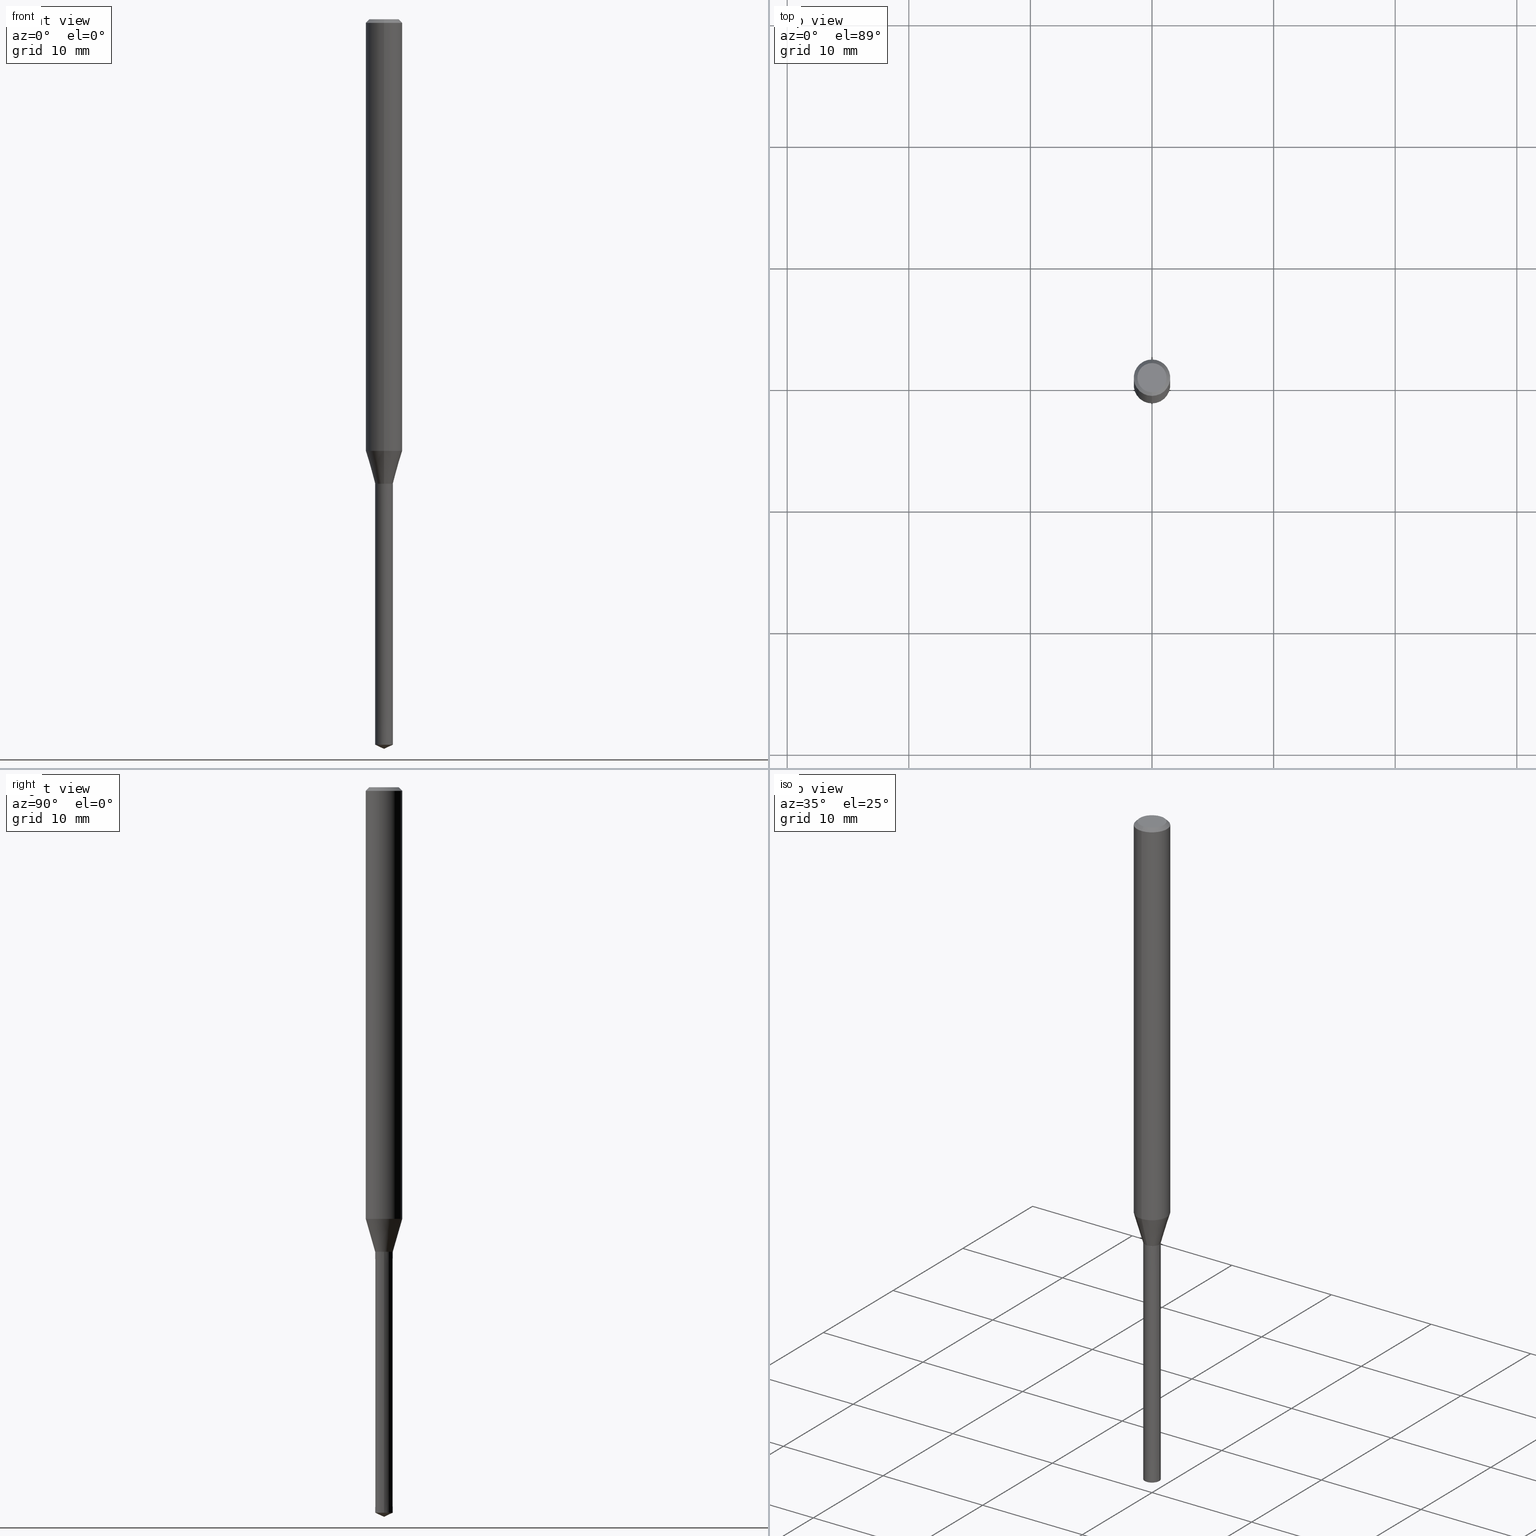
[diagram: canonical four-view strip — front | top / right | iso, engineering-drawing reading convention]
A machine part, canonical four-view strip (front | top / right | iso — engineering-drawing reading convention). The complete STEP part file that produces these views, byte-faithful:
ISO-10303-21;
HEADER;
FILE_DESCRIPTION(('no description'),'unknown implementation level');
FILE_NAME('UTDLX2145-218-Huellk.stp','  ',('CIMSOURCE GmbH'),('CADClick - KiM GmbH - www.kimweb.de'),'unknown preprocess','ACIS','unknown authorization');
FILE_SCHEMA(('automotive_design'));
ENDSEC;
DATA;
#1=MECHANICAL_DESIGN_GEOMETRIC_PRESENTATION_REPRESENTATION(' ',(#14,#15,#16,#17,#18,#19,#20,#21,#22,#23,#24,#25,#26,#27,#28,#29,#30,#31,#32,#33,#34,#35,#36,#37,#38,#39,#40,#41,#42,#43,#44,#45,#46,#47,#48,#49,#50,#51,#52,#53,#54,#55,#56,#57,#58,#59,#60,#61,#62,#63,#64,#65,#66,#67,#68,#69,#70,#71),#10);
#2=PRODUCT_DEFINITION_CONTEXT('',#72,'design');
#3=APPLICATION_PROTOCOL_DEFINITION('INTERNATIONAL STANDARD','automotive_design',1994,#72);
#4=PRODUCT_CATEGORY_RELATIONSHIP('NONE','NONE',#73,#74);
#5=SHAPE_DEFINITION_REPRESENTATION(#75,#76);
#6=PRODUCT_DEFINITION_CONTEXT('',#77,'design');
#7=APPLICATION_PROTOCOL_DEFINITION('INTERNATIONAL STANDARD','automotive_design',1994,#77);
#8=PRODUCT_CATEGORY_RELATIONSHIP('NONE','NONE',#78,#79);
#9=SHAPE_DEFINITION_REPRESENTATION(#80,#81);
#10= (GEOMETRIC_REPRESENTATION_CONTEXT(3)GLOBAL_UNCERTAINTY_ASSIGNED_CONTEXT((#84))GLOBAL_UNIT_ASSIGNED_CONTEXT((#86,#87,#88))REPRESENTATION_CONTEXT('NONE','WORKSPACE'));
#14=STYLED_ITEM('',(#90),#91);
#15=STYLED_ITEM('',(#92),#93);
#16=STYLED_ITEM('',(#94),#95);
#17=STYLED_ITEM('',(#96),#97);
#18=STYLED_ITEM('',(#98),#99);
#19=STYLED_ITEM('',(#100),#101);
#20=STYLED_ITEM('',(#102),#103);
#21=STYLED_ITEM('',(#104),#105);
#22=STYLED_ITEM('',(#106),#107);
#23=STYLED_ITEM('',(#108),#109);
#24=STYLED_ITEM('',(#110),#111);
#25=STYLED_ITEM('',(#112),#113);
#26=STYLED_ITEM('',(#114),#115);
#27=STYLED_ITEM('',(#116),#117);
#28=STYLED_ITEM('',(#118),#119);
#29=STYLED_ITEM('',(#120),#121);
#30=STYLED_ITEM('',(#122),#123);
#31=STYLED_ITEM('',(#124),#125);
#32=STYLED_ITEM('',(#126),#127);
#33=STYLED_ITEM('',(#128),#129);
#34=STYLED_ITEM('',(#130),#131);
#35=STYLED_ITEM('',(#132),#133);
#36=STYLED_ITEM('',(#134),#135);
#37=STYLED_ITEM('',(#136),#137);
#38=STYLED_ITEM('',(#138),#139);
#39=STYLED_ITEM('',(#140),#141);
#40=STYLED_ITEM('',(#142),#143);
#41=STYLED_ITEM('',(#144),#145);
#42=STYLED_ITEM('',(#146),#147);
#43=STYLED_ITEM('',(#148),#149);
#44=STYLED_ITEM('',(#150),#151);
#45=STYLED_ITEM('',(#152),#153);
#46=STYLED_ITEM('',(#154),#155);
#47=STYLED_ITEM('',(#156),#157);
#48=STYLED_ITEM('',(#158),#159);
#49=STYLED_ITEM('',(#160),#161);
#50=STYLED_ITEM('',(#162),#163);
#51=STYLED_ITEM('',(#164),#165);
#52=STYLED_ITEM('',(#166),#167);
#53=STYLED_ITEM('',(#168),#169);
#54=STYLED_ITEM('',(#170),#171);
#55=STYLED_ITEM('',(#172),#173);
#56=STYLED_ITEM('',(#174),#175);
#57=STYLED_ITEM('',(#176),#177);
#58=STYLED_ITEM('',(#178),#179);
#59=STYLED_ITEM('',(#180),#181);
#60=STYLED_ITEM('',(#182),#183);
#61=STYLED_ITEM('',(#184),#185);
#62=STYLED_ITEM('',(#186),#187);
#63=STYLED_ITEM('',(#188),#189);
#64=STYLED_ITEM('',(#190),#191);
#65=STYLED_ITEM('',(#192),#193);
#66=STYLED_ITEM('',(#194),#195);
#67=STYLED_ITEM('',(#196),#197);
#68=STYLED_ITEM('',(#198),#199);
#69=STYLED_ITEM('',(#200),#201);
#70=STYLED_ITEM('',(#202),#203);
#71=STYLED_ITEM('',(#204),#205);
#72=APPLICATION_CONTEXT(' ');
#73=PRODUCT_CATEGORY('part','NONE');
#74=PRODUCT_RELATED_PRODUCT_CATEGORY('detail',' ',(#206));
#75=PRODUCT_DEFINITION_SHAPE('NONE','NONE',#207);
#76=ADVANCED_BREP_SHAPE_REPRESENTATION('1',(#119,#208),#10);
#77=APPLICATION_CONTEXT(' ');
#78=PRODUCT_CATEGORY('part','NONE');
#79=PRODUCT_RELATED_PRODUCT_CATEGORY('detail',' ',(#209));
#80=PRODUCT_DEFINITION_SHAPE('NONE','NONE',#210);
#81=ADVANCED_BREP_SHAPE_REPRESENTATION('2',(#139,#211),#10);
#84=UNCERTAINTY_MEASURE_WITH_UNIT(LENGTH_MEASURE(1.0E-006),#86,'','');
#86= (CONVERSION_BASED_UNIT('MILLIMETRE',#214)LENGTH_UNIT()NAMED_UNIT(#217));
#87= (NAMED_UNIT(#219)PLANE_ANGLE_UNIT()SI_UNIT($,.RADIAN.));
#88= (NAMED_UNIT(#219)SOLID_ANGLE_UNIT()SI_UNIT($,.STERADIAN.));
#90=PRESENTATION_STYLE_ASSIGNMENT((#225));
#91=ADVANCED_FACE('',(#226),#227,.T.);
#92=PRESENTATION_STYLE_ASSIGNMENT((#228));
#93=ADVANCED_FACE('',(#229),#230,.T.);
#94=PRESENTATION_STYLE_ASSIGNMENT((#231));
#95=EDGE_CURVE('',#201,#125,#232,.T.);
#96=PRESENTATION_STYLE_ASSIGNMENT((#233));
#97=EDGE_CURVE('',#113,#125,#234,.T.);
#98=PRESENTATION_STYLE_ASSIGNMENT((#235));
#99=EDGE_CURVE('',#201,#159,#236,.T.);
#100=PRESENTATION_STYLE_ASSIGNMENT((#237));
#101=EDGE_CURVE('',#159,#115,#238,.T.);
#102=PRESENTATION_STYLE_ASSIGNMENT((#239));
#103=VERTEX_POINT('',#240);
#104=PRESENTATION_STYLE_ASSIGNMENT((#241));
#105=EDGE_CURVE('',#177,#117,#242,.T.);
#106=PRESENTATION_STYLE_ASSIGNMENT((#243));
#107=EDGE_CURVE('',#125,#201,#244,.T.);
#108=PRESENTATION_STYLE_ASSIGNMENT((#245));
#109=ADVANCED_FACE('',(#246),#247,.T.);
#110=PRESENTATION_STYLE_ASSIGNMENT((#248));
#111=EDGE_CURVE('',#173,#103,#249,.T.);
#112=PRESENTATION_STYLE_ASSIGNMENT((#250));
#113=VERTEX_POINT('',#251);
#114=PRESENTATION_STYLE_ASSIGNMENT((#252));
#115=VERTEX_POINT('',#253);
#116=PRESENTATION_STYLE_ASSIGNMENT((#254));
#117=VERTEX_POINT('',#255);
#118=PRESENTATION_STYLE_ASSIGNMENT((#256));
#119=MANIFOLD_SOLID_BREP('1',#257);
#120=PRESENTATION_STYLE_ASSIGNMENT((#258));
#121=EDGE_CURVE('',#103,#173,#259,.T.);
#122=PRESENTATION_STYLE_ASSIGNMENT((#260));
#123=EDGE_CURVE('',#155,#165,#261,.T.);
#124=PRESENTATION_STYLE_ASSIGNMENT((#262));
#125=VERTEX_POINT('',#263);
#126=PRESENTATION_STYLE_ASSIGNMENT((#264));
#127=EDGE_CURVE('',#165,#155,#265,.T.);
#128=PRESENTATION_STYLE_ASSIGNMENT((#266));
#129=ADVANCED_FACE('',(#267),#268,.T.);
#130=PRESENTATION_STYLE_ASSIGNMENT((#269));
#131=VERTEX_POINT('',#270);
#132=PRESENTATION_STYLE_ASSIGNMENT((#271));
#133=EDGE_CURVE('',#131,#157,#272,.T.);
#134=PRESENTATION_STYLE_ASSIGNMENT((#273));
#135=ADVANCED_FACE('',(#274),#275,.T.);
#136=PRESENTATION_STYLE_ASSIGNMENT((#276));
#137=EDGE_CURVE('',#173,#177,#277,.T.);
#138=PRESENTATION_STYLE_ASSIGNMENT((#278));
#139=MANIFOLD_SOLID_BREP('2',#279);
#140=PRESENTATION_STYLE_ASSIGNMENT((#280));
#141=EDGE_CURVE('',#113,#159,#281,.T.);
#142=PRESENTATION_STYLE_ASSIGNMENT((#282));
#143=EDGE_CURVE('',#125,#155,#283,.T.);
#144=PRESENTATION_STYLE_ASSIGNMENT((#284));
#145=EDGE_CURVE('',#147,#113,#285,.T.);
#146=PRESENTATION_STYLE_ASSIGNMENT((#286));
#147=VERTEX_POINT('',#287);
#148=PRESENTATION_STYLE_ASSIGNMENT((#288));
#149=ADVANCED_FACE('',(#289),#290,.T.);
#150=PRESENTATION_STYLE_ASSIGNMENT((#291));
#151=EDGE_CURVE('',#167,#177,#292,.T.);
#152=PRESENTATION_STYLE_ASSIGNMENT((#293));
#153=ADVANCED_FACE('',(#294),#295,.T.);
#154=PRESENTATION_STYLE_ASSIGNMENT((#296));
#155=VERTEX_POINT('',#297);
#156=PRESENTATION_STYLE_ASSIGNMENT((#298));
#157=VERTEX_POINT('',#299);
#158=PRESENTATION_STYLE_ASSIGNMENT((#300));
#159=VERTEX_POINT('',#301);
#160=PRESENTATION_STYLE_ASSIGNMENT((#302));
#161=ADVANCED_FACE('',(#303),#304,.T.);
#162=PRESENTATION_STYLE_ASSIGNMENT((#305));
#163=EDGE_CURVE('',#117,#167,#306,.T.);
#164=PRESENTATION_STYLE_ASSIGNMENT((#307));
#165=VERTEX_POINT('',#308);
#166=PRESENTATION_STYLE_ASSIGNMENT((#309));
#167=VERTEX_POINT('',#310);
#168=PRESENTATION_STYLE_ASSIGNMENT((#311));
#169=ADVANCED_FACE('',(#312),#313,.T.);
#170=PRESENTATION_STYLE_ASSIGNMENT((#314));
#171=EDGE_CURVE('',#167,#103,#315,.T.);
#172=PRESENTATION_STYLE_ASSIGNMENT((#316));
#173=VERTEX_POINT('',#317);
#174=PRESENTATION_STYLE_ASSIGNMENT((#318));
#175=EDGE_CURVE('',#131,#147,#319,.T.);
#176=PRESENTATION_STYLE_ASSIGNMENT((#320));
#177=VERTEX_POINT('',#321);
#178=PRESENTATION_STYLE_ASSIGNMENT((#322));
#179=ADVANCED_FACE('',(#323),#324,.T.);
#180=PRESENTATION_STYLE_ASSIGNMENT((#325));
#181=EDGE_CURVE('',#115,#147,#326,.T.);
#182=PRESENTATION_STYLE_ASSIGNMENT((#327));
#183=EDGE_CURVE('',#159,#113,#328,.T.);
#184=PRESENTATION_STYLE_ASSIGNMENT((#329));
#185=EDGE_CURVE('',#147,#115,#330,.T.);
#186=PRESENTATION_STYLE_ASSIGNMENT((#331));
#187=EDGE_CURVE('',#177,#167,#332,.T.);
#188=PRESENTATION_STYLE_ASSIGNMENT((#333));
#189=EDGE_CURVE('',#115,#157,#334,.T.);
#190=PRESENTATION_STYLE_ASSIGNMENT((#335));
#191=ADVANCED_FACE('',(#336),#337,.T.);
#192=PRESENTATION_STYLE_ASSIGNMENT((#338));
#193=ADVANCED_FACE('',(#339),#340,.T.);
#194=PRESENTATION_STYLE_ASSIGNMENT((#341));
#195=ADVANCED_FACE('',(#342),#343,.T.);
#196=PRESENTATION_STYLE_ASSIGNMENT((#344));
#197=EDGE_CURVE('',#165,#201,#345,.T.);
#198=PRESENTATION_STYLE_ASSIGNMENT((#346));
#199=EDGE_CURVE('',#157,#131,#347,.T.);
#200=PRESENTATION_STYLE_ASSIGNMENT((#348));
#201=VERTEX_POINT('',#349);
#202=PRESENTATION_STYLE_ASSIGNMENT((#350));
#203=ADVANCED_FACE('',(#351),#352,.T.);
#204=PRESENTATION_STYLE_ASSIGNMENT((#353));
#205=ADVANCED_FACE('',(#354),#355,.T.);
#206=PRODUCT('1','1','PART-1-DESC',(#356));
#207=PRODUCT_DEFINITION('NONE','NONE',#357,#2);
#208=AXIS2_PLACEMENT_3D('',#358,#359,#360);
#209=PRODUCT('2','2','PART-2-DESC',(#361));
#210=PRODUCT_DEFINITION('NONE','NONE',#362,#6);
#211=AXIS2_PLACEMENT_3D('',#363,#364,#365);
#214=LENGTH_MEASURE_WITH_UNIT(LENGTH_MEASURE(1.0),#366);
#217=DIMENSIONAL_EXPONENTS(1.0,0.0,0.0,0.0,0.0,0.0,0.0);
#219=DIMENSIONAL_EXPONENTS(0.0,0.0,0.0,0.0,0.0,0.0,0.0);
#225=SURFACE_STYLE_USAGE(.BOTH.,#367);
#226=FACE_OUTER_BOUND('',#368,.T.);
#227=PLANE('',#369);
#228=SURFACE_STYLE_USAGE(.BOTH.,#370);
#229=FACE_OUTER_BOUND('',#371,.T.);
#230=CONICAL_SURFACE('',#372,1.35,0.785398163397453);
#231=CURVE_STYLE('',#373,POSITIVE_LENGTH_MEASURE(1.0E-006),#374);
#232=CIRCLE('',#375,0.725);
#233=CURVE_STYLE('',#376,POSITIVE_LENGTH_MEASURE(1.0E-006),#377);
#234=LINE('',#378,#379);
#235=CURVE_STYLE('',#380,POSITIVE_LENGTH_MEASURE(1.0E-006),#381);
#236=LINE('',#382,#383);
#237=CURVE_STYLE('',#384,POSITIVE_LENGTH_MEASURE(1.0E-006),#385);
#238=LINE('',#386,#387);
#239=POINT_STYLE(' ',#388,POSITIVE_LENGTH_MEASURE(1.0E-006),#389);
#240=CARTESIAN_POINT('',(0.726,8.89064212875046E-017,-38.2));
#241=CURVE_STYLE('',#390,POSITIVE_LENGTH_MEASURE(1.0E-006),#391);
#242=LINE('',#392,#393);
#243=CURVE_STYLE('',#394,POSITIVE_LENGTH_MEASURE(1.0E-006),#395);
#244=CIRCLE('',#396,0.725);
#245=SURFACE_STYLE_USAGE(.BOTH.,#397);
#246=FACE_OUTER_BOUND('',#398,.T.);
#247=CYLINDRICAL_SURFACE('',#399,1.5);
#248=CURVE_STYLE('',#400,POSITIVE_LENGTH_MEASURE(1.0E-006),#401);
#249=CIRCLE('',#402,0.726);
#250=POINT_STYLE(' ',#403,POSITIVE_LENGTH_MEASURE(1.0E-006),#404);
#251=CARTESIAN_POINT('',(0.0,1.5,-35.497));
#252=POINT_STYLE(' ',#405,POSITIVE_LENGTH_MEASURE(1.0E-006),#406);
#253=CARTESIAN_POINT('',(1.83690953073357E-016,-1.5,-0.299999999999997));
#254=POINT_STYLE(' ',#407,POSITIVE_LENGTH_MEASURE(1.0E-006),#408);
#255=CARTESIAN_POINT('',(0.0,0.0,-60.0));
#256=SURFACE_STYLE_USAGE(.BOTH.,#409);
#257=CLOSED_SHELL('',(#203,#169,#109,#205,#179,#93,#129,#153,#191,#91));
#258=CURVE_STYLE('',#410,POSITIVE_LENGTH_MEASURE(1.0E-006),#411);
#259=CIRCLE('',#412,0.726);
#260=CURVE_STYLE('',#413,POSITIVE_LENGTH_MEASURE(1.0E-006),#414);
#261=CIRCLE('',#415,0.7255);
#262=POINT_STYLE(' ',#416,POSITIVE_LENGTH_MEASURE(1.0E-006),#417);
#263=CARTESIAN_POINT('',(0.0,0.725,-38.1991339745962));
#264=CURVE_STYLE('',#418,POSITIVE_LENGTH_MEASURE(1.0E-006),#419);
#265=CIRCLE('',#420,0.7255);
#266=SURFACE_STYLE_USAGE(.BOTH.,#421);
#267=FACE_OUTER_BOUND('',#422,.T.);
#268=CYLINDRICAL_SURFACE('',#423,1.5);
#269=POINT_STYLE(' ',#424,POSITIVE_LENGTH_MEASURE(1.0E-006),#425);
#270=CARTESIAN_POINT('',(0.0,1.2,0.0));
#271=CURVE_STYLE('',#426,POSITIVE_LENGTH_MEASURE(1.0E-006),#427);
#272=CIRCLE('',#428,1.2);
#273=SURFACE_STYLE_USAGE(.BOTH.,#429);
#274=FACE_OUTER_BOUND('',#430,.T.);
#275=CONICAL_SURFACE('',#431,0.3625,1.13446401624619);
#276=CURVE_STYLE('',#432,POSITIVE_LENGTH_MEASURE(1.0E-006),#433);
#277=LINE('',#434,#435);
#278=SURFACE_STYLE_USAGE(.BOTH.,#436);
#279=CLOSED_SHELL('',(#135,#161,#195,#149,#193));
#280=CURVE_STYLE('',#437,POSITIVE_LENGTH_MEASURE(1.0E-006),#438);
#281=CIRCLE('',#439,1.5);
#282=CURVE_STYLE('',#440,POSITIVE_LENGTH_MEASURE(1.0E-006),#441);
#283=LINE('',#442,#443);
#284=CURVE_STYLE('',#444,POSITIVE_LENGTH_MEASURE(1.0E-006),#445);
#285=LINE('',#446,#447);
#286=POINT_STYLE(' ',#448,POSITIVE_LENGTH_MEASURE(1.0E-006),#449);
#287=CARTESIAN_POINT('',(0.0,1.5,-0.299999999999997));
#288=SURFACE_STYLE_USAGE(.BOTH.,#450);
#289=FACE_OUTER_BOUND('',#451,.T.);
#290=CONICAL_SURFACE('',#452,0.7255,4.65941386160728E-005);
#291=CURVE_STYLE('',#453,POSITIVE_LENGTH_MEASURE(1.0E-006),#454);
#292=CIRCLE('',#455,0.725);
#293=SURFACE_STYLE_USAGE(.BOTH.,#456);
#294=FACE_OUTER_BOUND('',#457,.T.);
#295=CONICAL_SURFACE('',#458,1.1125,0.279312710884157);
#296=POINT_STYLE(' ',#459,POSITIVE_LENGTH_MEASURE(1.0E-006),#460);
#297=CARTESIAN_POINT('',(0.0,0.7255,-38.2));
#298=POINT_STYLE(' ',#461,POSITIVE_LENGTH_MEASURE(1.0E-006),#462);
#299=CARTESIAN_POINT('',(1.46952762458685E-016,-1.2,0.0));
#300=POINT_STYLE(' ',#463,POSITIVE_LENGTH_MEASURE(1.0E-006),#464);
#301=CARTESIAN_POINT('',(1.83690953073357E-016,-1.5,-35.497));
#302=SURFACE_STYLE_USAGE(.BOTH.,#465);
#303=FACE_OUTER_BOUND('',#466,.T.);
#304=CONICAL_SURFACE('',#467,0.7255,4.65941386160728E-005);
#305=CURVE_STYLE('',#468,POSITIVE_LENGTH_MEASURE(1.0E-006),#469);
#306=LINE('',#470,#471);
#307=POINT_STYLE(' ',#472,POSITIVE_LENGTH_MEASURE(1.0E-006),#473);
#308=CARTESIAN_POINT('',(8.88451909698135E-017,-0.7255,-38.2));
#309=POINT_STYLE(' ',#474,POSITIVE_LENGTH_MEASURE(1.0E-006),#475);
#310=CARTESIAN_POINT('',(0.725,8.87839606521223E-017,-59.66192695));
#311=SURFACE_STYLE_USAGE(.BOTH.,#476);
#312=FACE_OUTER_BOUND('',#477,.T.);
#313=CONICAL_SURFACE('',#478,1.1125,0.279312710884157);
#314=CURVE_STYLE('',#479,POSITIVE_LENGTH_MEASURE(1.0E-006),#480);
#315=LINE('',#481,#482);
#316=POINT_STYLE(' ',#483,POSITIVE_LENGTH_MEASURE(1.0E-006),#484);
#317=CARTESIAN_POINT('',(-0.726,0.0,-38.2));
#318=CURVE_STYLE('',#485,POSITIVE_LENGTH_MEASURE(1.0E-006),#486);
#319=LINE('',#487,#488);
#320=POINT_STYLE(' ',#489,POSITIVE_LENGTH_MEASURE(1.0E-006),#490);
#321=CARTESIAN_POINT('',(-0.725,0.0,-59.66192695));
#322=SURFACE_STYLE_USAGE(.BOTH.,#491);
#323=FACE_OUTER_BOUND('',#492,.T.);
#324=PLANE('',#493);
#325=CURVE_STYLE('',#494,POSITIVE_LENGTH_MEASURE(1.0E-006),#495);
#326=CIRCLE('',#496,1.5);
#327=CURVE_STYLE('',#497,POSITIVE_LENGTH_MEASURE(1.0E-006),#498);
#328=CIRCLE('',#499,1.5);
#329=CURVE_STYLE('',#500,POSITIVE_LENGTH_MEASURE(1.0E-006),#501);
#330=CIRCLE('',#502,1.5);
#331=CURVE_STYLE('',#503,POSITIVE_LENGTH_MEASURE(1.0E-006),#504);
#332=CIRCLE('',#505,0.725);
#333=CURVE_STYLE('',#506,POSITIVE_LENGTH_MEASURE(1.0E-006),#507);
#334=LINE('',#508,#509);
#335=SURFACE_STYLE_USAGE(.BOTH.,#510);
#336=FACE_OUTER_BOUND('',#511,.T.);
#337=CONICAL_SURFACE('',#512,0.72525,0.523598775598234);
#338=SURFACE_STYLE_USAGE(.BOTH.,#513);
#339=FACE_OUTER_BOUND('',#514,.T.);
#340=CONICAL_SURFACE('',#515,0.3625,1.13446401624619);
#341=SURFACE_STYLE_USAGE(.BOTH.,#516);
#342=FACE_OUTER_BOUND('',#517,.T.);
#343=PLANE('',#518);
#344=CURVE_STYLE('',#519,POSITIVE_LENGTH_MEASURE(1.0E-006),#520);
#345=LINE('',#521,#522);
#346=CURVE_STYLE('',#523,POSITIVE_LENGTH_MEASURE(1.0E-006),#524);
#347=CIRCLE('',#525,1.2);
#348=POINT_STYLE(' ',#526,POSITIVE_LENGTH_MEASURE(1.0E-006),#527);
#349=CARTESIAN_POINT('',(8.87839606521224E-017,-0.725,-38.1991339745962));
#350=SURFACE_STYLE_USAGE(.BOTH.,#528);
#351=FACE_OUTER_BOUND('',#529,.T.);
#352=CONICAL_SURFACE('',#530,0.72525,0.523598775598234);
#353=SURFACE_STYLE_USAGE(.BOTH.,#531);
#354=FACE_OUTER_BOUND('',#532,.T.);
#355=CONICAL_SURFACE('',#533,1.35,0.785398163397453);
#356=PRODUCT_CONTEXT('',#72,'mechanical');
#357=PRODUCT_DEFINITION_FORMATION_WITH_SPECIFIED_SOURCE(' ','NONE',#206,.NOT_KNOWN.);
#358=CARTESIAN_POINT('',(0.0,0.0,0.0));
#359=DIRECTION('',(0.0,0.0,1.0));
#360=DIRECTION('',(1.0,0.0,0.0));
#361=PRODUCT_CONTEXT('',#77,'mechanical');
#362=PRODUCT_DEFINITION_FORMATION_WITH_SPECIFIED_SOURCE(' ','NONE',#209,.NOT_KNOWN.);
#363=CARTESIAN_POINT('',(0.0,0.0,0.0));
#364=DIRECTION('',(0.0,0.0,1.0));
#365=DIRECTION('',(1.0,0.0,0.0));
#366= (NAMED_UNIT(#217)LENGTH_UNIT()SI_UNIT(.MILLI.,.METRE.));
#367=SURFACE_SIDE_STYLE('',(#535));
#368=EDGE_LOOP('',(#536,#537));
#369=AXIS2_PLACEMENT_3D('',#538,#539,#540);
#370=SURFACE_SIDE_STYLE('',(#541));
#371=EDGE_LOOP('',(#542,#543,#544,#545));
#372=AXIS2_PLACEMENT_3D('',#546,#547,#548);
#373=DRAUGHTING_PRE_DEFINED_CURVE_FONT('continuous');
#374=COLOUR_RGB('',0.498039215803146,0.498039215803146,0.498039215803146);
#375=AXIS2_PLACEMENT_3D('',#549,#550,#551);
#376=DRAUGHTING_PRE_DEFINED_CURVE_FONT('continuous');
#377=COLOUR_RGB('',0.498039215803146,0.498039215803146,0.498039215803146);
#378=CARTESIAN_POINT('',(-1.3623745686274E-016,1.1125,-36.8480669872981));
#379=VECTOR('',#552,1.0);
#380=DRAUGHTING_PRE_DEFINED_CURVE_FONT('continuous');
#381=COLOUR_RGB('',0.498039215803146,0.498039215803146,0.498039215803146);
#382=CARTESIAN_POINT('',(1.36237456862739E-016,-1.1125,-36.8480669872981));
#383=VECTOR('',#553,1.0);
#384=DRAUGHTING_PRE_DEFINED_CURVE_FONT('continuous');
#385=COLOUR_RGB('',0.498039215803146,0.498039215803146,0.498039215803146);
#386=CARTESIAN_POINT('',(1.83690953073357E-016,-1.5,-17.8985));
#387=VECTOR('',#554,1.0);
#388=PRE_DEFINED_MARKER('');
#389=COLOUR_RGB('',0.800000011920929,0.800000011920929,0.800000011920929);
#390=DRAUGHTING_PRE_DEFINED_CURVE_FONT('continuous');
#391=COLOUR_RGB('',0.800000011920929,0.800000011920929,0.800000011920929);
#392=CARTESIAN_POINT('',(-0.3625,-4.43919803260612E-017,-59.830963475));
#393=VECTOR('',#555,1.0);
#394=DRAUGHTING_PRE_DEFINED_CURVE_FONT('continuous');
#395=COLOUR_RGB('',0.498039215803146,0.498039215803146,0.498039215803146);
#396=AXIS2_PLACEMENT_3D('',#556,#557,#558);
#397=SURFACE_SIDE_STYLE('',(#559));
#398=EDGE_LOOP('',(#560,#561,#562,#563));
#399=AXIS2_PLACEMENT_3D('',#564,#565,#566);
#400=DRAUGHTING_PRE_DEFINED_CURVE_FONT('continuous');
#401=COLOUR_RGB('',0.800000011920929,0.800000011920929,0.800000011920929);
#402=AXIS2_PLACEMENT_3D('',#567,#568,#569);
#403=PRE_DEFINED_MARKER('');
#404=COLOUR_RGB('',0.498039215803146,0.498039215803146,0.498039215803146);
#405=PRE_DEFINED_MARKER('');
#406=COLOUR_RGB('',0.498039215803146,0.498039215803146,0.498039215803146);
#407=PRE_DEFINED_MARKER('');
#408=COLOUR_RGB('',0.800000011920929,0.800000011920929,0.800000011920929);
#409=SURFACE_SIDE_STYLE('',(#570));
#410=DRAUGHTING_PRE_DEFINED_CURVE_FONT('continuous');
#411=COLOUR_RGB('',0.800000011920929,0.800000011920929,0.800000011920929);
#412=AXIS2_PLACEMENT_3D('',#571,#572,#573);
#413=DRAUGHTING_PRE_DEFINED_CURVE_FONT('continuous');
#414=COLOUR_RGB('',0.498039215803146,0.498039215803146,0.498039215803146);
#415=AXIS2_PLACEMENT_3D('',#574,#575,#576);
#416=PRE_DEFINED_MARKER('');
#417=COLOUR_RGB('',0.498039215803146,0.498039215803146,0.498039215803146);
#418=DRAUGHTING_PRE_DEFINED_CURVE_FONT('continuous');
#419=COLOUR_RGB('',0.498039215803146,0.498039215803146,0.498039215803146);
#420=AXIS2_PLACEMENT_3D('',#577,#578,#579);
#421=SURFACE_SIDE_STYLE('',(#580));
#422=EDGE_LOOP('',(#581,#582,#583,#584));
#423=AXIS2_PLACEMENT_3D('',#585,#586,#587);
#424=PRE_DEFINED_MARKER('');
#425=COLOUR_RGB('',0.498039215803146,0.498039215803146,0.498039215803146);
#426=DRAUGHTING_PRE_DEFINED_CURVE_FONT('continuous');
#427=COLOUR_RGB('',0.498039215803146,0.498039215803146,0.498039215803146);
#428=AXIS2_PLACEMENT_3D('',#588,#589,#590);
#429=SURFACE_SIDE_STYLE('',(#591));
#430=EDGE_LOOP('',(#592,#593,#594));
#431=AXIS2_PLACEMENT_3D('',#595,#596,#597);
#432=DRAUGHTING_PRE_DEFINED_CURVE_FONT('continuous');
#433=COLOUR_RGB('',0.800000011920929,0.800000011920929,0.800000011920929);
#434=CARTESIAN_POINT('',(-0.7255,-8.88451909698135E-017,-48.930963475));
#435=VECTOR('',#598,1.0);
#436=SURFACE_SIDE_STYLE('',(#599));
#437=DRAUGHTING_PRE_DEFINED_CURVE_FONT('continuous');
#438=COLOUR_RGB('',0.498039215803146,0.498039215803146,0.498039215803146);
#439=AXIS2_PLACEMENT_3D('',#600,#601,#602);
#440=DRAUGHTING_PRE_DEFINED_CURVE_FONT('continuous');
#441=COLOUR_RGB('',0.498039215803146,0.498039215803146,0.498039215803146);
#442=CARTESIAN_POINT('',(-8.88145758109679E-017,0.72525,-38.1995669872981));
#443=VECTOR('',#603,1.0);
#444=DRAUGHTING_PRE_DEFINED_CURVE_FONT('continuous');
#445=COLOUR_RGB('',0.498039215803146,0.498039215803146,0.498039215803146);
#446=CARTESIAN_POINT('',(-1.83690953073357E-016,1.5,-17.8985));
#447=VECTOR('',#604,1.0);
#448=PRE_DEFINED_MARKER('');
#449=COLOUR_RGB('',0.498039215803146,0.498039215803146,0.498039215803146);
#450=SURFACE_SIDE_STYLE('',(#605));
#451=EDGE_LOOP('',(#606,#607,#608,#609));
#452=AXIS2_PLACEMENT_3D('',#610,#611,#612);
#453=DRAUGHTING_PRE_DEFINED_CURVE_FONT('continuous');
#454=COLOUR_RGB('',0.800000011920929,0.800000011920929,0.800000011920929);
#455=AXIS2_PLACEMENT_3D('',#613,#614,#615);
#456=SURFACE_SIDE_STYLE('',(#616));
#457=EDGE_LOOP('',(#617,#618,#619,#620));
#458=AXIS2_PLACEMENT_3D('',#621,#622,#623);
#459=PRE_DEFINED_MARKER('');
#460=COLOUR_RGB('',0.498039215803146,0.498039215803146,0.498039215803146);
#461=PRE_DEFINED_MARKER('');
#462=COLOUR_RGB('',0.498039215803146,0.498039215803146,0.498039215803146);
#463=PRE_DEFINED_MARKER('');
#464=COLOUR_RGB('',0.498039215803146,0.498039215803146,0.498039215803146);
#465=SURFACE_SIDE_STYLE('',(#624));
#466=EDGE_LOOP('',(#625,#626,#627,#628));
#467=AXIS2_PLACEMENT_3D('',#629,#630,#631);
#468=DRAUGHTING_PRE_DEFINED_CURVE_FONT('continuous');
#469=COLOUR_RGB('',0.800000011920929,0.800000011920929,0.800000011920929);
#470=CARTESIAN_POINT('',(0.3625,4.43919803260612E-017,-59.830963475));
#471=VECTOR('',#632,1.0);
#472=PRE_DEFINED_MARKER('');
#473=COLOUR_RGB('',0.498039215803146,0.498039215803146,0.498039215803146);
#474=PRE_DEFINED_MARKER('');
#475=COLOUR_RGB('',0.800000011920929,0.800000011920929,0.800000011920929);
#476=SURFACE_SIDE_STYLE('',(#633));
#477=EDGE_LOOP('',(#634,#635,#636,#637));
#478=AXIS2_PLACEMENT_3D('',#638,#639,#640);
#479=DRAUGHTING_PRE_DEFINED_CURVE_FONT('continuous');
#480=COLOUR_RGB('',0.800000011920929,0.800000011920929,0.800000011920929);
#481=CARTESIAN_POINT('',(0.7255,8.88451909698135E-017,-48.930963475));
#482=VECTOR('',#641,1.0);
#483=PRE_DEFINED_MARKER('');
#484=COLOUR_RGB('',0.800000011920929,0.800000011920929,0.800000011920929);
#485=DRAUGHTING_PRE_DEFINED_CURVE_FONT('continuous');
#486=COLOUR_RGB('',0.498039215803146,0.498039215803146,0.498039215803146);
#487=CARTESIAN_POINT('',(-1.65321857766021E-016,1.35,-0.149999999999999));
#488=VECTOR('',#642,1.0);
#489=PRE_DEFINED_MARKER('');
#490=COLOUR_RGB('',0.800000011920929,0.800000011920929,0.800000011920929);
#491=SURFACE_SIDE_STYLE('',(#643));
#492=EDGE_LOOP('',(#644,#645));
#493=AXIS2_PLACEMENT_3D('',#646,#647,#648);
#494=DRAUGHTING_PRE_DEFINED_CURVE_FONT('continuous');
#495=COLOUR_RGB('',0.498039215803146,0.498039215803146,0.498039215803146);
#496=AXIS2_PLACEMENT_3D('',#649,#650,#651);
#497=DRAUGHTING_PRE_DEFINED_CURVE_FONT('continuous');
#498=COLOUR_RGB('',0.498039215803146,0.498039215803146,0.498039215803146);
#499=AXIS2_PLACEMENT_3D('',#652,#653,#654);
#500=DRAUGHTING_PRE_DEFINED_CURVE_FONT('continuous');
#501=COLOUR_RGB('',0.498039215803146,0.498039215803146,0.498039215803146);
#502=AXIS2_PLACEMENT_3D('',#655,#656,#657);
#503=DRAUGHTING_PRE_DEFINED_CURVE_FONT('continuous');
#504=COLOUR_RGB('',0.800000011920929,0.800000011920929,0.800000011920929);
#505=AXIS2_PLACEMENT_3D('',#658,#659,#660);
#506=DRAUGHTING_PRE_DEFINED_CURVE_FONT('continuous');
#507=COLOUR_RGB('',0.498039215803146,0.498039215803146,0.498039215803146);
#508=CARTESIAN_POINT('',(1.65321857766021E-016,-1.35,-0.149999999999999));
#509=VECTOR('',#661,1.0);
#510=SURFACE_SIDE_STYLE('',(#662));
#511=EDGE_LOOP('',(#663,#664,#665,#666));
#512=AXIS2_PLACEMENT_3D('',#667,#668,#669);
#513=SURFACE_SIDE_STYLE('',(#670));
#514=EDGE_LOOP('',(#671,#672,#673));
#515=AXIS2_PLACEMENT_3D('',#674,#675,#676);
#516=SURFACE_SIDE_STYLE('',(#677));
#517=EDGE_LOOP('',(#678,#679));
#518=AXIS2_PLACEMENT_3D('',#680,#681,#682);
#519=DRAUGHTING_PRE_DEFINED_CURVE_FONT('continuous');
#520=COLOUR_RGB('',0.498039215803146,0.498039215803146,0.498039215803146);
#521=CARTESIAN_POINT('',(8.88145758109679E-017,-0.72525,-38.1995669872981));
#522=VECTOR('',#683,1.0);
#523=DRAUGHTING_PRE_DEFINED_CURVE_FONT('continuous');
#524=COLOUR_RGB('',0.498039215803146,0.498039215803146,0.498039215803146);
#525=AXIS2_PLACEMENT_3D('',#684,#685,#686);
#526=PRE_DEFINED_MARKER('');
#527=COLOUR_RGB('',0.498039215803146,0.498039215803146,0.498039215803146);
#528=SURFACE_SIDE_STYLE('',(#687));
#529=EDGE_LOOP('',(#688,#689,#690,#691));
#530=AXIS2_PLACEMENT_3D('',#692,#693,#694);
#531=SURFACE_SIDE_STYLE('',(#695));
#532=EDGE_LOOP('',(#696,#697,#698,#699));
#533=AXIS2_PLACEMENT_3D('',#700,#701,#702);
#535=SURFACE_STYLE_FILL_AREA(#703);
#536=ORIENTED_EDGE('',*,*,#123,.T.);
#537=ORIENTED_EDGE('',*,*,#127,.T.);
#538=CARTESIAN_POINT('',(0.0,0.36275,-38.2));
#539=DIRECTION('',(0.0,0.0,-1.0));
#540=DIRECTION('',(0.0,1.0,0.0));
#541=SURFACE_STYLE_FILL_AREA(#704);
#542=ORIENTED_EDGE('',*,*,#175,.T.);
#543=ORIENTED_EDGE('',*,*,#181,.F.);
#544=ORIENTED_EDGE('',*,*,#189,.T.);
#545=ORIENTED_EDGE('',*,*,#199,.T.);
#546=CARTESIAN_POINT('',(0.0,0.0,-0.149999999999999));
#547=DIRECTION('',(0.0,-0.0,-1.0));
#548=DIRECTION('',(0.0,1.0,0.0));
#549=CARTESIAN_POINT('',(0.0,0.0,-38.1991339745962));
#550=DIRECTION('',(0.0,0.0,-1.0));
#551=DIRECTION('',(0.0,1.0,0.0));
#552=DIRECTION('',(3.37617922687074E-017,-0.275695060403094,-0.961245147540072));
#553=DIRECTION('',(3.37617922687074E-017,-0.275695060403094,0.961245147540072));
#554=DIRECTION('',(-0.0,-0.0,1.0));
#555=DIRECTION('',(0.906307788072013,1.10987027579169E-016,-0.422618259520356));
#556=CARTESIAN_POINT('',(0.0,0.0,-38.1991339745962));
#557=DIRECTION('',(0.0,0.0,-1.0));
#558=DIRECTION('',(0.0,1.0,0.0));
#559=SURFACE_STYLE_FILL_AREA(#705);
#560=ORIENTED_EDGE('',*,*,#145,.F.);
#561=ORIENTED_EDGE('',*,*,#185,.T.);
#562=ORIENTED_EDGE('',*,*,#101,.F.);
#563=ORIENTED_EDGE('',*,*,#141,.F.);
#564=CARTESIAN_POINT('',(0.0,0.0,-17.8985));
#565=DIRECTION('',(-0.0,-0.0,1.0));
#566=DIRECTION('',(0.0,1.0,0.0));
#567=CARTESIAN_POINT('',(0.0,0.0,-38.2));
#568=DIRECTION('',(0.0,0.0,-1.0));
#569=DIRECTION('',(-1.0,0.0,0.0));
#570=SURFACE_STYLE_FILL_AREA(#706);
#571=CARTESIAN_POINT('',(0.0,0.0,-38.2));
#572=DIRECTION('',(0.0,0.0,-1.0));
#573=DIRECTION('',(-1.0,0.0,0.0));
#574=CARTESIAN_POINT('',(0.0,0.0,-38.2));
#575=DIRECTION('',(0.0,0.0,-1.0));
#576=DIRECTION('',(0.0,1.0,0.0));
#577=CARTESIAN_POINT('',(0.0,0.0,-38.2));
#578=DIRECTION('',(0.0,0.0,-1.0));
#579=DIRECTION('',(0.0,1.0,0.0));
#580=SURFACE_STYLE_FILL_AREA(#707);
#581=ORIENTED_EDGE('',*,*,#145,.T.);
#582=ORIENTED_EDGE('',*,*,#183,.F.);
#583=ORIENTED_EDGE('',*,*,#101,.T.);
#584=ORIENTED_EDGE('',*,*,#181,.T.);
#585=CARTESIAN_POINT('',(0.0,0.0,-17.8985));
#586=DIRECTION('',(-0.0,-0.0,1.0));
#587=DIRECTION('',(0.0,1.0,0.0));
#588=CARTESIAN_POINT('',(0.0,0.0,0.0));
#589=DIRECTION('',(0.0,0.0,-1.0));
#590=DIRECTION('',(0.0,1.0,0.0));
#591=SURFACE_STYLE_FILL_AREA(#708);
#592=ORIENTED_EDGE('',*,*,#163,.F.);
#593=ORIENTED_EDGE('',*,*,#105,.F.);
#594=ORIENTED_EDGE('',*,*,#187,.T.);
#595=CARTESIAN_POINT('',(0.0,0.0,-59.830963475));
#596=DIRECTION('',(-0.0,-0.0,1.0));
#597=DIRECTION('',(-1.0,0.0,0.0));
#598=DIRECTION('',(4.65941385992134E-005,5.70594781794773E-021,-0.999999998914493));
#599=SURFACE_STYLE_FILL_AREA(#709);
#600=CARTESIAN_POINT('',(0.0,0.0,-35.497));
#601=DIRECTION('',(0.0,0.0,-1.0));
#602=DIRECTION('',(0.0,1.0,0.0));
#603=DIRECTION('',(-6.12303176911117E-017,0.499999999999942,-0.866025403784472));
#604=DIRECTION('',(0.0,0.0,-1.0));
#605=SURFACE_STYLE_FILL_AREA(#710);
#606=ORIENTED_EDGE('',*,*,#137,.T.);
#607=ORIENTED_EDGE('',*,*,#151,.F.);
#608=ORIENTED_EDGE('',*,*,#171,.T.);
#609=ORIENTED_EDGE('',*,*,#121,.T.);
#610=CARTESIAN_POINT('',(0.0,0.0,-48.930963475));
#611=DIRECTION('',(-0.0,-0.0,1.0));
#612=DIRECTION('',(-1.0,0.0,0.0));
#613=CARTESIAN_POINT('',(0.0,0.0,-59.66192695));
#614=DIRECTION('',(0.0,0.0,-1.0));
#615=DIRECTION('',(-1.0,0.0,0.0));
#616=SURFACE_STYLE_FILL_AREA(#711);
#617=ORIENTED_EDGE('',*,*,#97,.T.);
#618=ORIENTED_EDGE('',*,*,#95,.F.);
#619=ORIENTED_EDGE('',*,*,#99,.T.);
#620=ORIENTED_EDGE('',*,*,#183,.T.);
#621=CARTESIAN_POINT('',(0.0,0.0,-36.8480669872981));
#622=DIRECTION('',(-0.0,-0.0,1.0));
#623=DIRECTION('',(0.0,1.0,0.0));
#624=SURFACE_STYLE_FILL_AREA(#712);
#625=ORIENTED_EDGE('',*,*,#137,.F.);
#626=ORIENTED_EDGE('',*,*,#111,.T.);
#627=ORIENTED_EDGE('',*,*,#171,.F.);
#628=ORIENTED_EDGE('',*,*,#187,.F.);
#629=CARTESIAN_POINT('',(0.0,0.0,-48.930963475));
#630=DIRECTION('',(-0.0,-0.0,1.0));
#631=DIRECTION('',(-1.0,0.0,0.0));
#632=DIRECTION('',(0.906307788072013,1.10987027579169E-016,0.422618259520356));
#633=SURFACE_STYLE_FILL_AREA(#713);
#634=ORIENTED_EDGE('',*,*,#97,.F.);
#635=ORIENTED_EDGE('',*,*,#141,.T.);
#636=ORIENTED_EDGE('',*,*,#99,.F.);
#637=ORIENTED_EDGE('',*,*,#107,.F.);
#638=CARTESIAN_POINT('',(0.0,0.0,-36.8480669872981));
#639=DIRECTION('',(-0.0,-0.0,1.0));
#640=DIRECTION('',(0.0,1.0,0.0));
#641=DIRECTION('',(4.65941385992134E-005,5.70594781794773E-021,0.999999998914493));
#642=DIRECTION('',(-8.65927457071939E-017,0.707106781186551,-0.707106781186544));
#643=SURFACE_STYLE_FILL_AREA(#714);
#644=ORIENTED_EDGE('',*,*,#133,.F.);
#645=ORIENTED_EDGE('',*,*,#199,.F.);
#646=CARTESIAN_POINT('',(0.0,0.6,0.0));
#647=DIRECTION('',(-0.0,0.0,1.0));
#648=DIRECTION('',(0.0,-1.0,0.0));
#649=CARTESIAN_POINT('',(0.0,0.0,-0.299999999999997));
#650=DIRECTION('',(0.0,0.0,-1.0));
#651=DIRECTION('',(0.0,1.0,0.0));
#652=CARTESIAN_POINT('',(0.0,0.0,-35.497));
#653=DIRECTION('',(0.0,0.0,-1.0));
#654=DIRECTION('',(0.0,1.0,0.0));
#655=CARTESIAN_POINT('',(0.0,0.0,-0.299999999999997));
#656=DIRECTION('',(0.0,0.0,-1.0));
#657=DIRECTION('',(0.0,1.0,0.0));
#658=CARTESIAN_POINT('',(0.0,0.0,-59.66192695));
#659=DIRECTION('',(0.0,0.0,-1.0));
#660=DIRECTION('',(-1.0,0.0,0.0));
#661=DIRECTION('',(-8.65927457071939E-017,0.707106781186551,0.707106781186544));
#662=SURFACE_STYLE_FILL_AREA(#715);
#663=ORIENTED_EDGE('',*,*,#143,.T.);
#664=ORIENTED_EDGE('',*,*,#127,.F.);
#665=ORIENTED_EDGE('',*,*,#197,.T.);
#666=ORIENTED_EDGE('',*,*,#95,.T.);
#667=CARTESIAN_POINT('',(0.0,0.0,-38.1995669872981));
#668=DIRECTION('',(0.0,-0.0,-1.0));
#669=DIRECTION('',(0.0,1.0,0.0));
#670=SURFACE_STYLE_FILL_AREA(#716);
#671=ORIENTED_EDGE('',*,*,#163,.T.);
#672=ORIENTED_EDGE('',*,*,#151,.T.);
#673=ORIENTED_EDGE('',*,*,#105,.T.);
#674=CARTESIAN_POINT('',(0.0,0.0,-59.830963475));
#675=DIRECTION('',(-0.0,-0.0,1.0));
#676=DIRECTION('',(-1.0,0.0,0.0));
#677=SURFACE_STYLE_FILL_AREA(#717);
#678=ORIENTED_EDGE('',*,*,#111,.F.);
#679=ORIENTED_EDGE('',*,*,#121,.F.);
#680=CARTESIAN_POINT('',(-0.363,0.0,-38.2));
#681=DIRECTION('',(0.0,0.0,1.0));
#682=DIRECTION('',(1.0,0.0,0.0));
#683=DIRECTION('',(-6.12303176911118E-017,0.499999999999942,0.866025403784472));
#684=CARTESIAN_POINT('',(0.0,0.0,0.0));
#685=DIRECTION('',(0.0,0.0,-1.0));
#686=DIRECTION('',(0.0,1.0,0.0));
#687=SURFACE_STYLE_FILL_AREA(#718);
#688=ORIENTED_EDGE('',*,*,#143,.F.);
#689=ORIENTED_EDGE('',*,*,#107,.T.);
#690=ORIENTED_EDGE('',*,*,#197,.F.);
#691=ORIENTED_EDGE('',*,*,#123,.F.);
#692=CARTESIAN_POINT('',(0.0,0.0,-38.1995669872981));
#693=DIRECTION('',(0.0,-0.0,-1.0));
#694=DIRECTION('',(0.0,1.0,0.0));
#695=SURFACE_STYLE_FILL_AREA(#719);
#696=ORIENTED_EDGE('',*,*,#175,.F.);
#697=ORIENTED_EDGE('',*,*,#133,.T.);
#698=ORIENTED_EDGE('',*,*,#189,.F.);
#699=ORIENTED_EDGE('',*,*,#185,.F.);
#700=CARTESIAN_POINT('',(0.0,0.0,-0.149999999999999));
#701=DIRECTION('',(0.0,-0.0,-1.0));
#702=DIRECTION('',(0.0,1.0,0.0));
#703=FILL_AREA_STYLE('',(#720));
#704=FILL_AREA_STYLE('',(#721));
#705=FILL_AREA_STYLE('',(#722));
#706=FILL_AREA_STYLE('',(#723));
#707=FILL_AREA_STYLE('',(#724));
#708=FILL_AREA_STYLE('',(#725));
#709=FILL_AREA_STYLE('',(#726));
#710=FILL_AREA_STYLE('',(#727));
#711=FILL_AREA_STYLE('',(#728));
#712=FILL_AREA_STYLE('',(#729));
#713=FILL_AREA_STYLE('',(#730));
#714=FILL_AREA_STYLE('',(#731));
#715=FILL_AREA_STYLE('',(#732));
#716=FILL_AREA_STYLE('',(#733));
#717=FILL_AREA_STYLE('',(#734));
#718=FILL_AREA_STYLE('',(#735));
#719=FILL_AREA_STYLE('',(#736));
#720=FILL_AREA_STYLE_COLOUR('',#737);
#721=FILL_AREA_STYLE_COLOUR('',#738);
#722=FILL_AREA_STYLE_COLOUR('',#739);
#723=FILL_AREA_STYLE_COLOUR('',#740);
#724=FILL_AREA_STYLE_COLOUR('',#741);
#725=FILL_AREA_STYLE_COLOUR('',#742);
#726=FILL_AREA_STYLE_COLOUR('',#743);
#727=FILL_AREA_STYLE_COLOUR('',#744);
#728=FILL_AREA_STYLE_COLOUR('',#745);
#729=FILL_AREA_STYLE_COLOUR('',#746);
#730=FILL_AREA_STYLE_COLOUR('',#747);
#731=FILL_AREA_STYLE_COLOUR('',#748);
#732=FILL_AREA_STYLE_COLOUR('',#749);
#733=FILL_AREA_STYLE_COLOUR('',#750);
#734=FILL_AREA_STYLE_COLOUR('',#751);
#735=FILL_AREA_STYLE_COLOUR('',#752);
#736=FILL_AREA_STYLE_COLOUR('',#753);
#737=COLOUR_RGB('',0.498039215803146,0.498039215803146,0.498039215803146);
#738=COLOUR_RGB('',0.498039215803146,0.498039215803146,0.498039215803146);
#739=COLOUR_RGB('',0.498039215803146,0.498039215803146,0.498039215803146);
#740=COLOUR_RGB('',0.498039215803146,0.498039215803146,0.498039215803146);
#741=COLOUR_RGB('',0.498039215803146,0.498039215803146,0.498039215803146);
#742=COLOUR_RGB('',0.800000011920929,0.800000011920929,0.800000011920929);
#743=COLOUR_RGB('',0.800000011920929,0.800000011920929,0.800000011920929);
#744=COLOUR_RGB('',0.800000011920929,0.800000011920929,0.800000011920929);
#745=COLOUR_RGB('',0.498039215803146,0.498039215803146,0.498039215803146);
#746=COLOUR_RGB('',0.800000011920929,0.800000011920929,0.800000011920929);
#747=COLOUR_RGB('',0.498039215803146,0.498039215803146,0.498039215803146);
#748=COLOUR_RGB('',0.498039215803146,0.498039215803146,0.498039215803146);
#749=COLOUR_RGB('',0.498039215803146,0.498039215803146,0.498039215803146);
#750=COLOUR_RGB('',0.800000011920929,0.800000011920929,0.800000011920929);
#751=COLOUR_RGB('',0.800000011920929,0.800000011920929,0.800000011920929);
#752=COLOUR_RGB('',0.498039215803146,0.498039215803146,0.498039215803146);
#753=COLOUR_RGB('',0.498039215803146,0.498039215803146,0.498039215803146);
#754=AXIS2_PLACEMENT_3D('PCS',#755,#756,#757);
#755=CARTESIAN_POINT('',(0.0,0.0,0.0));
#756=DIRECTION('',(0.0,0.0,1.0));
#757=DIRECTION('',(1.0,0.0,0.0));
#758=AXIS2_PLACEMENT_3D('CIP',#759,#760,#761);
#759=CARTESIAN_POINT('',(0.0,0.0,-60.0));
#760=DIRECTION('',(0.0,0.0,1.0));
#761=DIRECTION('',(1.0,0.0,0.0));
#762=AXIS2_PLACEMENT_3D('CRP',#763,#764,#765);
#763=CARTESIAN_POINT('',(-0.725,0.0,-59.6619));
#764=DIRECTION('',(0.0,0.0,1.0));
#765=DIRECTION('',(1.0,0.0,0.0));
#766=AXIS2_PLACEMENT_3D('MCS',#767,#768,#769);
#767=CARTESIAN_POINT('',(0.0,0.0,-35.497));
#768=DIRECTION('',(0.0,0.0,1.0));
#769=DIRECTION('',(1.0,0.0,0.0));
#770=CONSTRUCTIVE_GEOMETRY_REPRESENTATION_RELATIONSHIP('coordinate systems',$,#76,#771);
#771=CONSTRUCTIVE_GEOMETRY_REPRESENTATION('coordinate systems',(#754,#758,#762,#766),#10);
ENDSEC;
END-ISO-10303-21;
